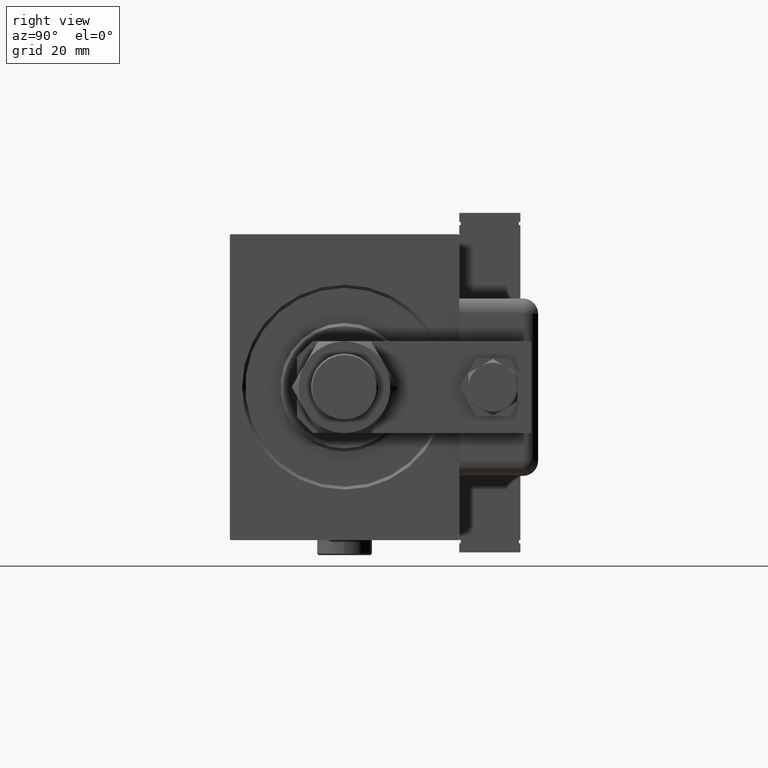
[diagram: clean part render]
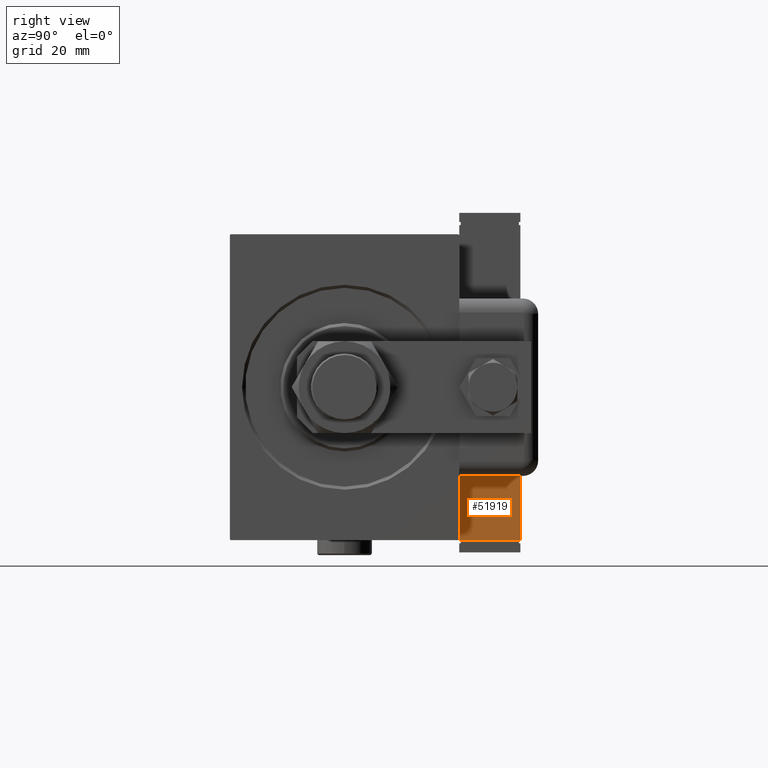
[diagram: same view with one face highlighted and labeled with its STEP entity id]
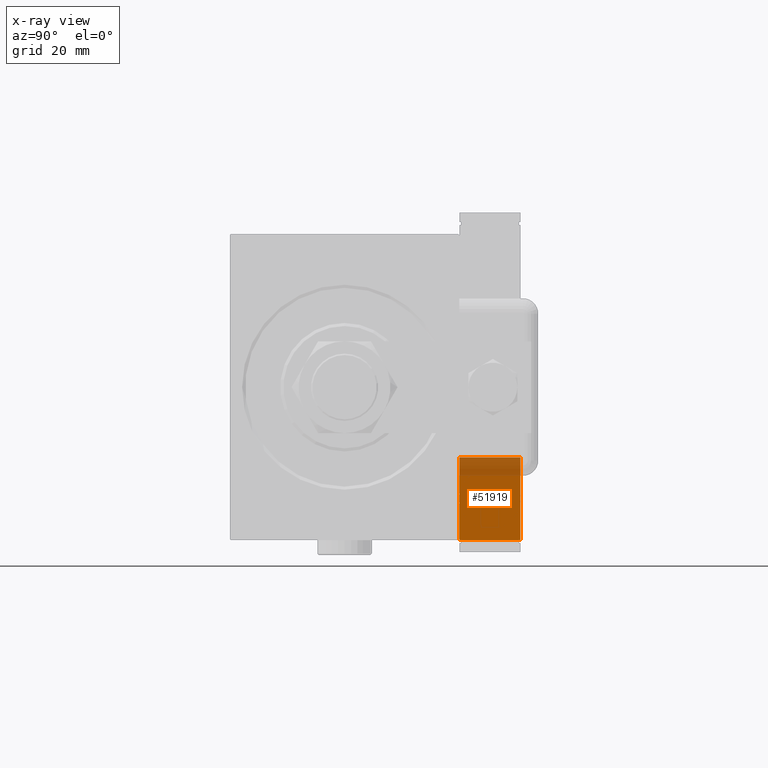
[diagram: x-ray of the same camera — body ghosted, the highlighted face saturated]
A machine part, right view. The second image highlights one B-rep face of the part: STEP entity #51919.
The next image is the same camera in x-ray: the body ghosted, the highlighted face saturated — about 22% of this face is hidden behind the body in this view.
In plain terms, the highlighted planar face has unit normal (-1, -0, 0).
Its self-contained STEP definition (entity closure, byte-faithful):
#576 = VECTOR ( 'NONE', #40226, 1000.000000000000000 ) ;
#1451 = CARTESIAN_POINT ( 'NONE',  ( 20.00000000000005329, -13.49999999999996092, 10.00000000000000000 ) ) ;
#2586 = CARTESIAN_POINT ( 'NONE',  ( 20.00000000000005329, -13.49999999999996092, -10.00000000000000000 ) ) ;
#4299 = CARTESIAN_POINT ( 'NONE',  ( 20.00000000000005684, 13.50000000000003730, 10.00000000000000000 ) ) ;
#4675 = CARTESIAN_POINT ( 'NONE',  ( 20.00000000000005684, 13.50000000000003730, 10.00000000000000000 ) ) ;
#5799 = CARTESIAN_POINT ( 'NONE',  ( 20.00000000000005329, -13.49999999999996092, 10.00000000000000000 ) ) ;
#8964 = LINE ( 'NONE', #4299, #13782 ) ;
#9377 = EDGE_CURVE ( 'NONE', #49772, #53290, #25406, .T. ) ;
#10087 = VERTEX_POINT ( 'NONE', #60315 ) ;
#13782 = VECTOR ( 'NONE', #37882, 1000.000000000000000 ) ;
#14721 = VERTEX_POINT ( 'NONE', #4675 ) ;
#16529 = ORIENTED_EDGE ( 'NONE', *, *, #36305, .T. ) ;
#16833 = DIRECTION ( 'NONE',  ( -1.284980352575412699E-16, -1.000000000000000000, 0.000000000000000000 ) ) ;
#19535 = EDGE_LOOP ( 'NONE', ( #16529, #26207, #23123, #53714 ) ) ;
#23123 = ORIENTED_EDGE ( 'NONE', *, *, #49856, .F. ) ;
#25406 = LINE ( 'NONE', #1451, #45156 ) ;
#25629 = LINE ( 'NONE', #2586, #576 ) ;
#26207 = ORIENTED_EDGE ( 'NONE', *, *, #55338, .F. ) ;
#30230 = PLANE ( 'NONE',  #61353 ) ;
#31145 = CARTESIAN_POINT ( 'NONE',  ( 20.00000000000005329, -13.49999999999996092, 10.00000000000000000 ) ) ;
#31958 = CARTESIAN_POINT ( 'NONE',  ( 20.00000000000005329, -13.49999999999996092, 10.00000000000000000 ) ) ;
#36118 = FACE_OUTER_BOUND ( 'NONE', #19535, .T. ) ;
#36305 = EDGE_CURVE ( 'NONE', #53290, #10087, #25629, .T. ) ;
#37415 = VECTOR ( 'NONE', #42822, 1000.000000000000000 ) ;
#37882 = DIRECTION ( 'NONE',  ( -0.000000000000000000, -0.000000000000000000, -1.000000000000000000 ) ) ;
#39088 = LINE ( 'NONE', #5799, #37415 ) ;
#40226 = DIRECTION ( 'NONE',  ( 1.284980352575412699E-16, 1.000000000000000000, 0.000000000000000000 ) ) ;
#42822 = DIRECTION ( 'NONE',  ( 1.284980352575412699E-16, 1.000000000000000000, 0.000000000000000000 ) ) ;
#44843 = DIRECTION ( 'NONE',  ( -1.000000000000000000, 1.284980352575412699E-16, 0.000000000000000000 ) ) ;
#44973 = DIRECTION ( 'NONE',  ( -0.000000000000000000, -0.000000000000000000, -1.000000000000000000 ) ) ;
#45156 = VECTOR ( 'NONE', #44973, 1000.000000000000000 ) ;
#49772 = VERTEX_POINT ( 'NONE', #31958 ) ;
#49856 = EDGE_CURVE ( 'NONE', #49772, #14721, #39088, .T. ) ;
#50787 = CARTESIAN_POINT ( 'NONE',  ( 20.00000000000005329, -13.49999999999996092, -10.00000000000000000 ) ) ;
#51919 = ADVANCED_FACE ( 'NONE', ( #36118 ), #30230, .F. ) ;
#53290 = VERTEX_POINT ( 'NONE', #50787 ) ;
#53714 = ORIENTED_EDGE ( 'NONE', *, *, #9377, .T. ) ;
#55338 = EDGE_CURVE ( 'NONE', #14721, #10087, #8964, .T. ) ;
#60315 = CARTESIAN_POINT ( 'NONE',  ( 20.00000000000005684, 13.50000000000003730, -10.00000000000000000 ) ) ;
#61353 = AXIS2_PLACEMENT_3D ( 'NONE', #31145, #44843, #16833 ) ;